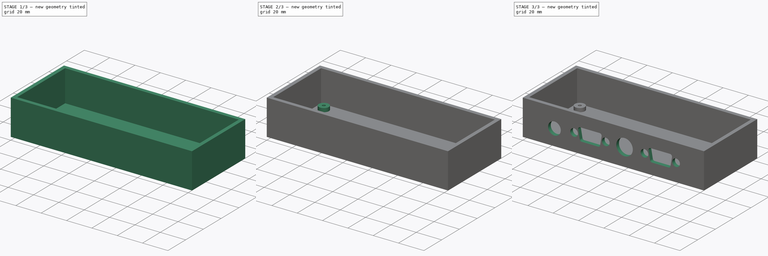
[diagram: build sequence overview — one tinted view per stage of 3, left to right]
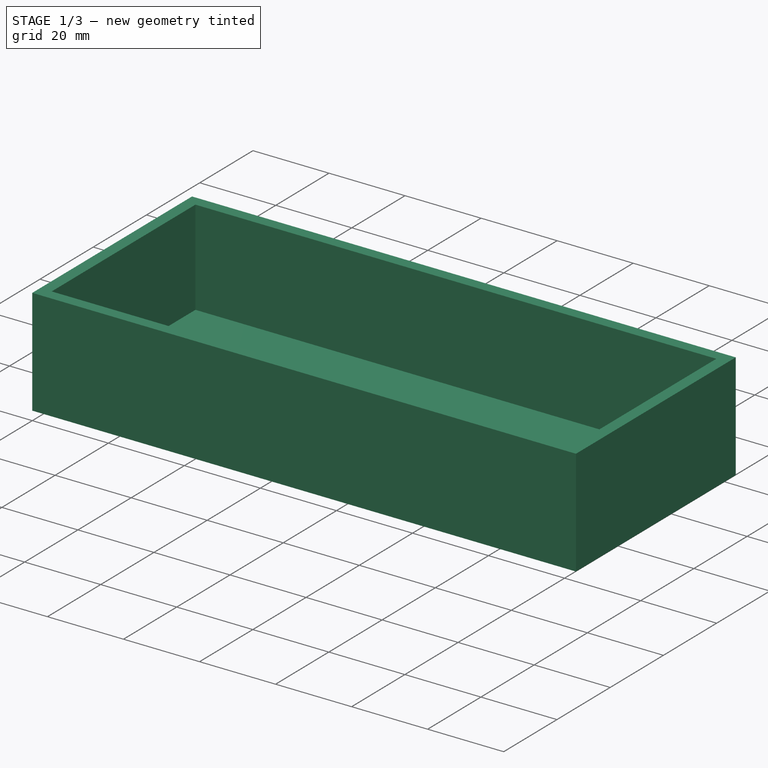
[diagram: stage 1 of 3 — iso view after this stage's code; geometry added in this stage tinted green]
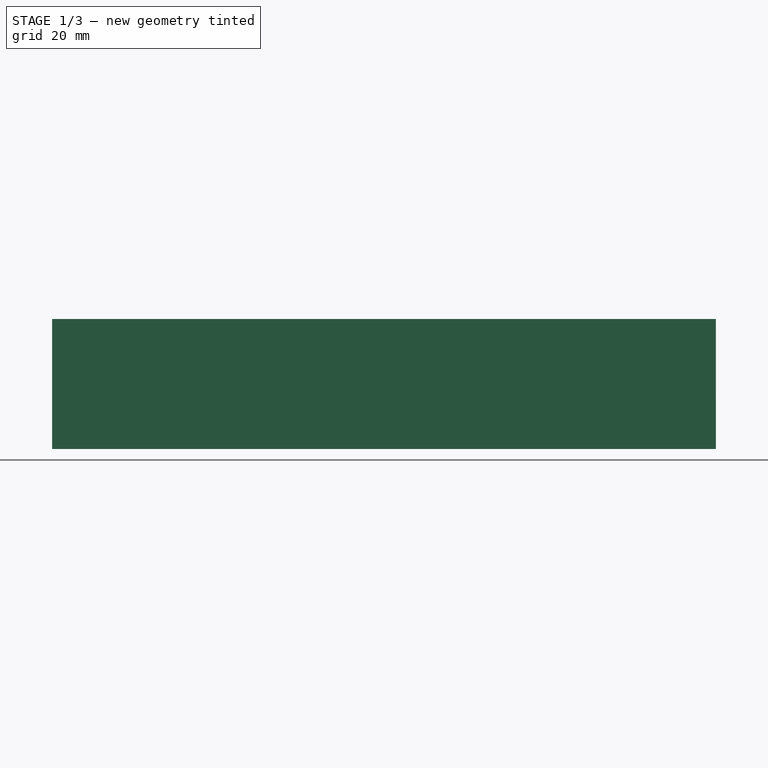
[diagram: stage 1 of 3 — front view after this stage's code; geometry added in this stage tinted green]
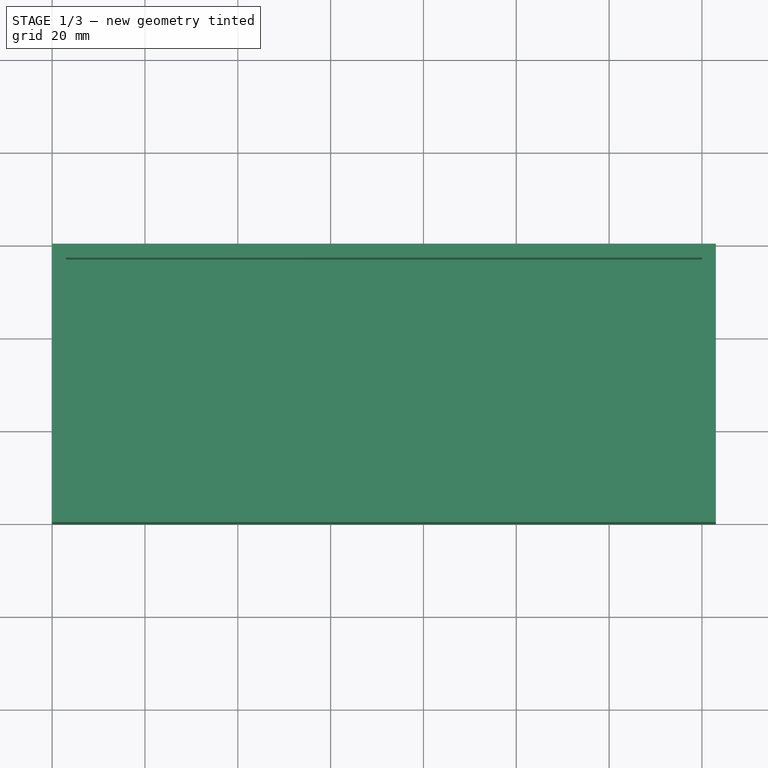
[diagram: stage 1 of 3 — top view after this stage's code; geometry added in this stage tinted green]
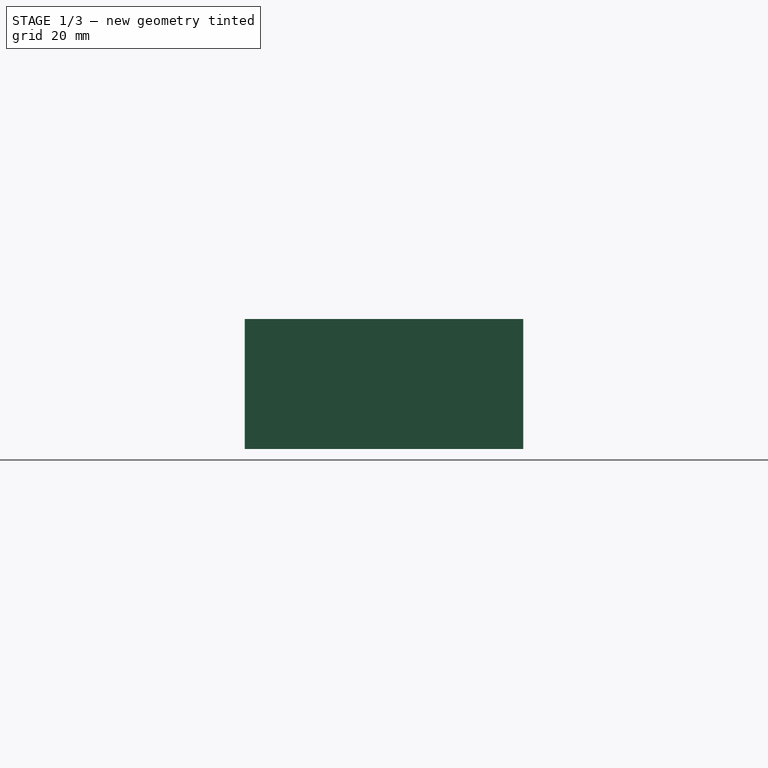
[diagram: stage 1 of 3 — right view after this stage's code; geometry added in this stage tinted green]
FCSTD DOCUMENT  (FreeCAD 0.19RUnknown)
Label: bottom
License: All rights reserved
LicenseURL: http://en.wikipedia.org/wiki/All_rights_reserved
objects: Sketcher::SketchObject×6, PartDesign::Pocket×4, PartDesign::Pad×2, PartDesign::Body×1
note: 19 computed .brp shape members not serialized (recipe doc carries the construction recipe); baked Part::Feature solids carry a one-line shape summary decoded from their .brp

FEATURE [Sketcher::SketchObject] Sketch  label="base"
  MapMode = 5
  Support = -> [XY_Plane]
  sketch-geometry (4):
    g0: LineSegment StartX=0 StartY=0 StartZ=0 EndX=143 EndY=0 EndZ=0
    g1: LineSegment StartX=143 StartY=0 StartZ=0 EndX=143 EndY=60 EndZ=0
    g2: LineSegment StartX=143 StartY=60 StartZ=0 EndX=0 EndY=60 EndZ=0
    g3: LineSegment StartX=0 StartY=60 StartZ=0 EndX=0 EndY=0 EndZ=0
  constraints (11):
    c: Coincident(g0,g1)
    c: Coincident(g1,g2)
    c: Coincident(g2,g3)
    c: Coincident(g3,g0)
    c: Horizontal(g0)
    c: Horizontal(g2)
    c: Vertical(g1)
    c: Vertical(g3)
    c: DistanceX(g0,g0) = 143
    c: DistanceY(g3,g3) = 60
    c: Coincident(g0,g-1)
FEATURE [Sketcher::SketchObject] Sketch001  label="bosses"
  MapMode = 5
  sketch-geometry (4):
    g0: Circle CenterX=10 CenterY=50 CenterZ=0 NormalX=0 NormalY=0 NormalZ=1 AngleXU=0 Radius=4
    g1: Circle CenterX=10 CenterY=10 CenterZ=0 NormalX=0 NormalY=0 NormalZ=1 AngleXU=0 Radius=4
    g2: Circle CenterX=133 CenterY=50 CenterZ=0 NormalX=0 NormalY=0 NormalZ=1 AngleXU=0 Radius=4
    g3: Circle CenterX=133 CenterY=10 CenterZ=0 NormalX=0 NormalY=0 NormalZ=1 AngleXU=0 Radius=4
  constraints (12):
    c: Diameter(g0) = 8
    c: Equal(g0,g1) = 8
    c: Equal(g0,g2) = 8
    c: Equal(g0,g3) = 8
    c: DistanceX(g-1,g1) = 10
    c: DistanceY(g-1,g1) = 10
    c: DistanceX(g1,g3) = 123
    c: Horizontal(g1,g3)
    c: Vertical(g2,g3)
    c: Vertical(g0,g1)
    c: DistanceY(g1,g0) = 40
    c: Horizontal(g0,g2)
FEATURE [PartDesign::Pad] Pad  label="base pad"
  Direction = (1,1,1)
  Length = 28
  Length2 = 100
  Profile = -> Sketch
  Type = 0
FEATURE [Sketcher::SketchObject] Sketch002  label="inner walls"
  AttachmentOffset = pos=(0,0,3) rot=(0,0,1;0rad)
  ExternalGeometry = -> [Sketch]
  MapMode = 5
  Placement = pos=(0,0,3) rot=(0,0,1;0rad)
  Support = -> [XY_Plane]
  sketch-geometry (4):
    g0: LineSegment StartX=3 StartY=3 StartZ=0 EndX=140 EndY=3 EndZ=0
    g1: LineSegment StartX=140 StartY=3 StartZ=0 EndX=140 EndY=57 EndZ=0
    g2: LineSegment StartX=140 StartY=57 StartZ=0 EndX=3 EndY=57 EndZ=0
    g3: LineSegment StartX=3 StartY=57 StartZ=0 EndX=3 EndY=3 EndZ=0
  constraints (12):
    c: Coincident(g0,g1)
    c: Coincident(g1,g2)
    c: Coincident(g2,g3)
    c: Coincident(g3,g0)
    c: Horizontal(g0)
    c: Horizontal(g2)
    c: Vertical(g1)
    c: Vertical(g3)
    c: DistanceX(g-1,g0) = 3
    c: DistanceY(g-1,g0) = 3
    c: DistanceX(g1,g-3) = 3
    c: DistanceY(g1,g-3) = 3
FEATURE [PartDesign::Pocket] Pocket  label="inner walls pocket"
  BaseFeature = -> Pad
  Length = 5
  Length2 = 100
  Profile = -> Sketch002
  Reversed = true
  Type = 1
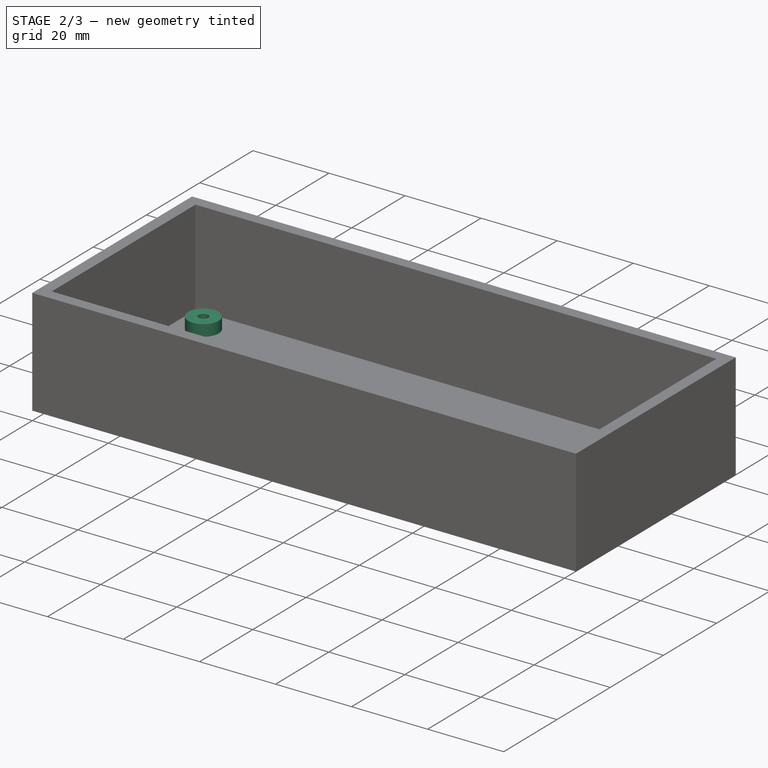
[diagram: stage 2 of 3 — iso view after this stage's code; geometry added in this stage tinted green]
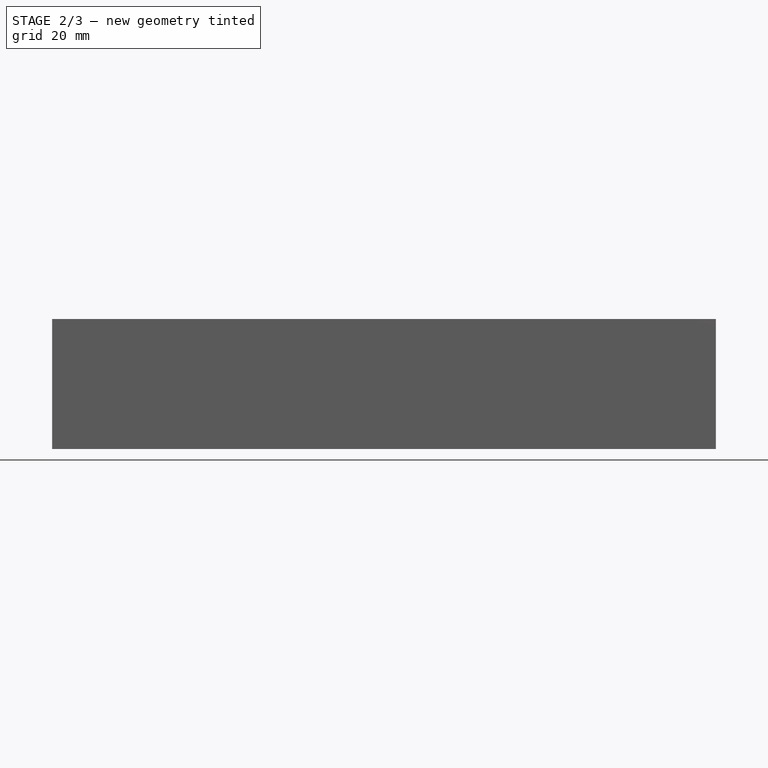
[diagram: stage 2 of 3 — front view after this stage's code; geometry added in this stage tinted green]
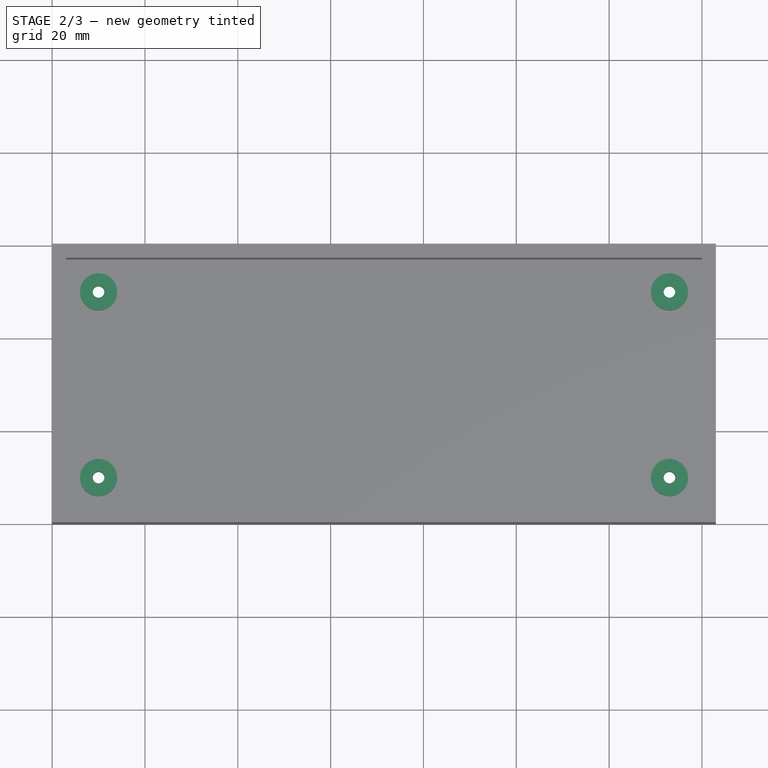
[diagram: stage 2 of 3 — top view after this stage's code; geometry added in this stage tinted green]
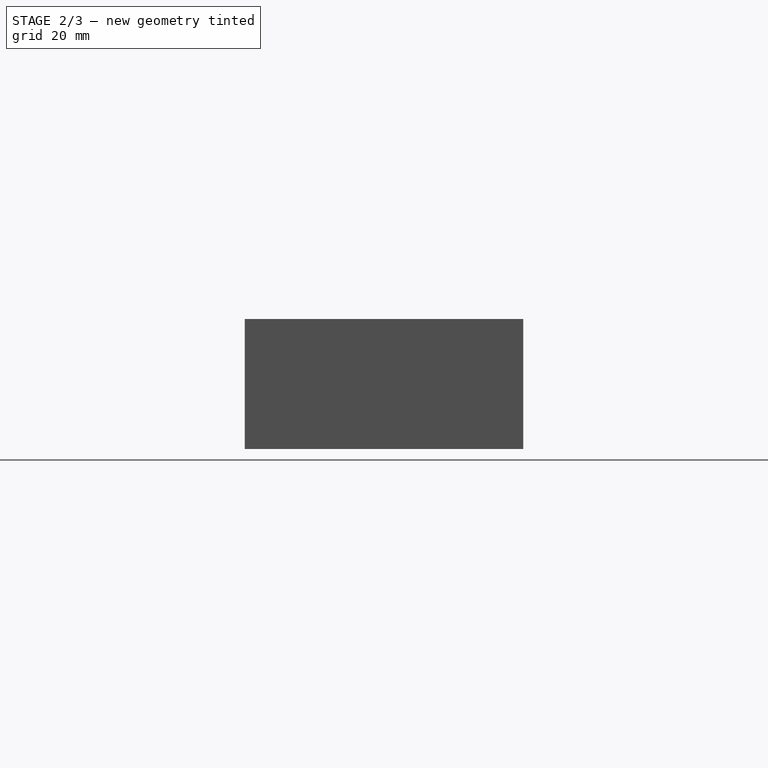
[diagram: stage 2 of 3 — right view after this stage's code; geometry added in this stage tinted green]
FEATURE [PartDesign::Pad] Pad001  label="bosses pad"
  BaseFeature = -> Pocket
  Direction = (1,1,1)
  Length = 6
  Length2 = 100
  Profile = -> Sketch001
  Type = 0
FEATURE [Sketcher::SketchObject] Sketch003  label="mounting holes"
  MapMode = 5
  sketch-geometry (4):
    g0: Circle CenterX=10 CenterY=10 CenterZ=0 NormalX=0 NormalY=0 NormalZ=1 AngleXU=0 Radius=1.25
    g1: Circle CenterX=133 CenterY=10 CenterZ=0 NormalX=0 NormalY=0 NormalZ=1 AngleXU=0 Radius=1.25
    g2: Circle CenterX=133 CenterY=50 CenterZ=0 NormalX=0 NormalY=0 NormalZ=1 AngleXU=0 Radius=1.25
    g3: Circle CenterX=10 CenterY=50 CenterZ=0 NormalX=0 NormalY=0 NormalZ=1 AngleXU=0 Radius=1.25
  constraints (12):
    c: Diameter(g0) = 2.5
    c: Equal(g0,g1) = 2.5
    c: Horizontal(g0,g1)
    c: DistanceX(g0,g1) = 123
    c: DistanceY(g0,g2) = 40
    c: Vertical(g1,g2)
    c: Equal(g2,g0)
    c: Equal(g0,g3) = 2.5
    c: Vertical(g0,g3)
    c: Horizontal(g3,g2)
    c: DistanceX(g-1,g0) = 10
    c: DistanceY(g-1,g0) = 10
FEATURE [PartDesign::Pocket] Pocket001  label="mounting holes pocket"
  BaseFeature = -> Pad001
  Length = 5
  Length2 = 100
  Profile = -> Sketch003
  Reversed = true
  Type = 1
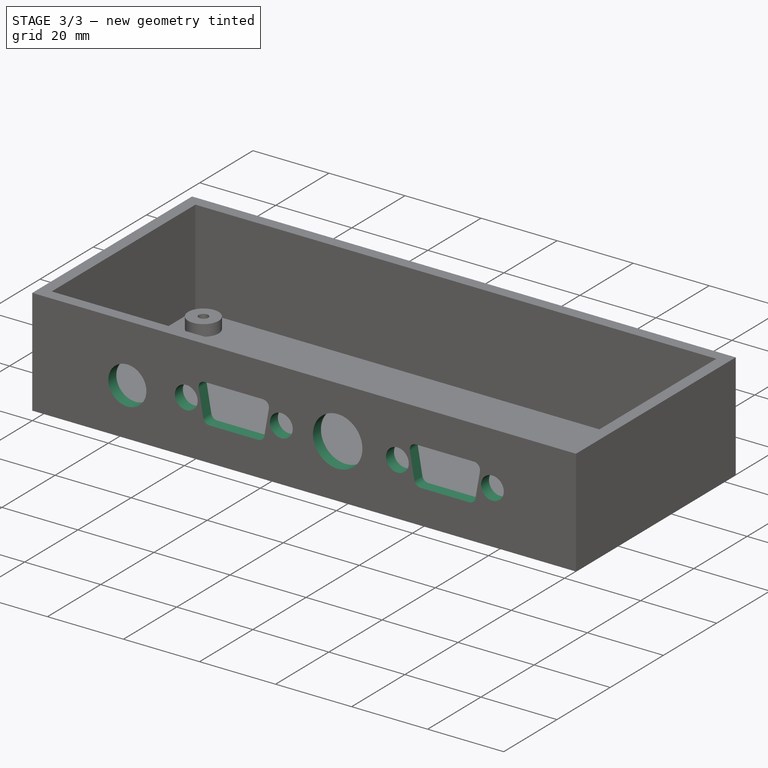
[diagram: stage 3 of 3 — iso view after this stage's code; geometry added in this stage tinted green]
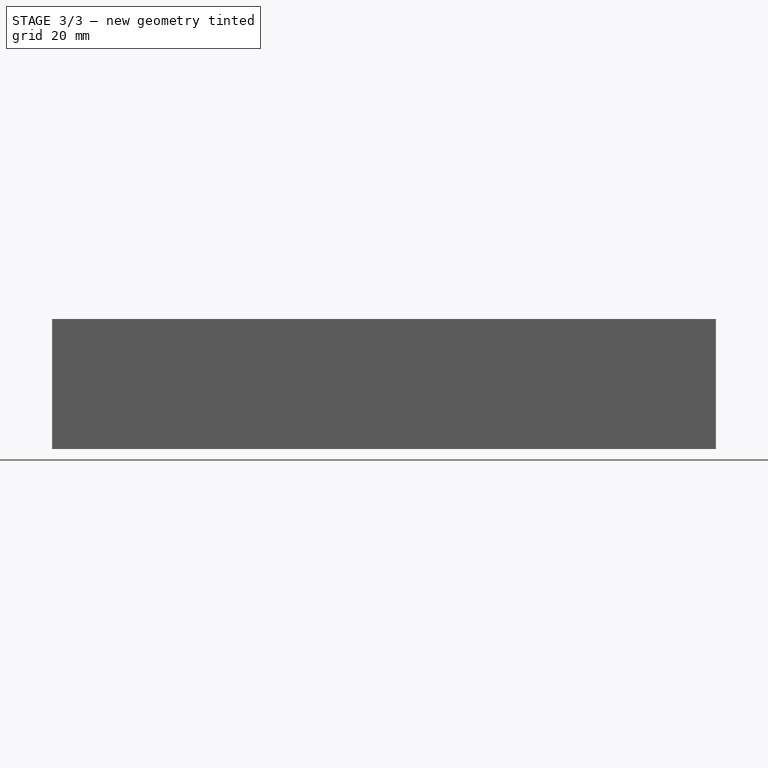
[diagram: stage 3 of 3 — front view after this stage's code; geometry added in this stage tinted green]
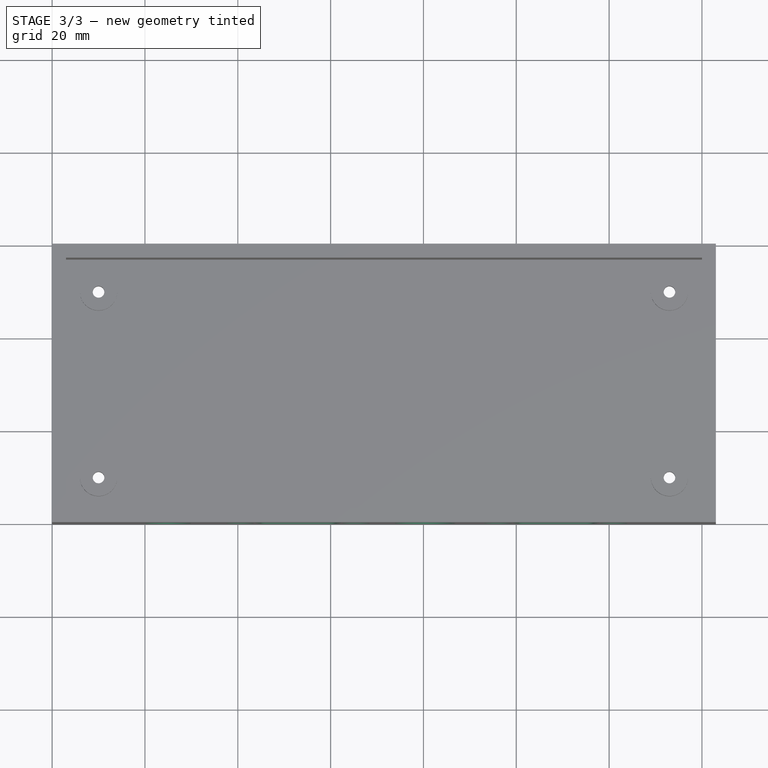
[diagram: stage 3 of 3 — top view after this stage's code; geometry added in this stage tinted green]
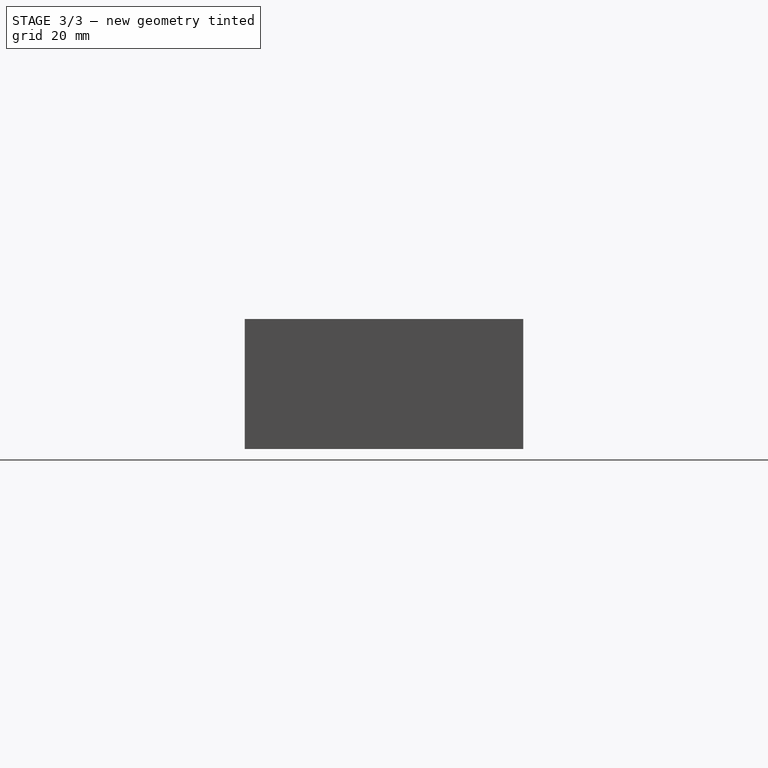
[diagram: stage 3 of 3 — right view after this stage's code; geometry added in this stage tinted green]
FEATURE [Sketcher::SketchObject] Sketch004  label="connector holes"
  ExternalGeometry = -> [Pad001]
  MapMode = 5
  Placement = pos=(0,0,0) rot=(1,0,0;1.5708rad)
  Support = -> [XZ_Plane]
  sketch-geometry (36):
    g0: Circle CenterX=25 CenterY=12.67 CenterZ=0 NormalX=0 NormalY=0 NormalZ=1 AngleXU=0 Radius=3.25
    g1: LineSegment [constr] StartX=0 StartY=7.67 StartZ=0 EndX=150 EndY=7.67 EndZ=0
    g2: LineSegment [constr] StartX=0 StartY=13.9525 StartZ=0 EndX=150 EndY=13.9525 EndZ=0
    g3: Circle CenterX=40.505 CenterY=13.9525 CenterZ=0 NormalX=0 NormalY=0 NormalZ=1 AngleXU=0 Radius=3
    g4: Circle CenterX=65.495 CenterY=13.9525 CenterZ=0 NormalX=0 NormalY=0 NormalZ=1 AngleXU=0 Radius=3
    g5: LineSegment [constr] StartX=40.505 StartY=13.9525 StartZ=0 EndX=65.495 EndY=13.9525 EndZ=0
    g6: GeomPoint X=53 Y=13.9525 Z=0
    g7: LineSegment StartX=46.549 StartY=8.9525 StartZ=0 EndX=59.451 EndY=8.9525 EndZ=0
    g8: LineSegment StartX=60.65 StartY=18.9525 StartZ=0 EndX=45.35 EndY=18.9525 EndZ=0
    g9: LineSegment StartX=43.7743 StartY=17.0747 StartZ=0 EndX=44.9733 EndY=10.2747 EndZ=0
    g10: LineSegment StartX=62.2257 StartY=17.0747 StartZ=0 EndX=61.0267 EndY=10.2747 EndZ=0
    g11: ArcOfCircle CenterX=45.35 CenterY=17.3525 CenterZ=0 NormalX=0 NormalY=0 NormalZ=1 AngleXU=0 Radius=1.6 StartAngle=1.5708 EndAngle=3.31613
    g12: ArcOfCircle CenterX=46.549 CenterY=10.5525 CenterZ=0 NormalX=0 NormalY=0 NormalZ=1 AngleXU=0 Radius=1.6 StartAngle=3.31613 EndAngle=4.71239
    g13: ArcOfCircle CenterX=59.451 CenterY=10.5525 CenterZ=0 NormalX=0 NormalY=0 NormalZ=1 AngleXU=0 Radius=1.6 StartAngle=4.71239 EndAngle=6.10865
    g14: ArcOfCircle CenterX=60.65 CenterY=17.3525 CenterZ=0 NormalX=0 NormalY=0 NormalZ=1 AngleXU=0 Radius=1.6 StartAngle=6.10865 EndAngle=7.85398
    g15: LineSegment [constr] StartX=43.75 StartY=0 StartZ=0 EndX=43.75 EndY=30 EndZ=0
    g16: LineSegment [constr] StartX=62.25 StartY=0 StartZ=0 EndX=62.25 EndY=30 EndZ=0
    g17: LineSegment [constr] StartX=43.75 StartY=0 StartZ=0 EndX=62.25 EndY=0 EndZ=0
    g18: GeomPoint X=53 Y=0 Z=0
    g19: Circle CenterX=80.327 CenterY=14.17 CenterZ=0 NormalX=0 NormalY=0 NormalZ=1 AngleXU=0 Radius=4.75
    g20: Circle CenterX=96.026 CenterY=13.9525 CenterZ=0 NormalX=0 NormalY=0 NormalZ=1 AngleXU=0 Radius=3
    g21: Circle CenterX=121.016 CenterY=13.9525 CenterZ=0 NormalX=0 NormalY=0 NormalZ=1 AngleXU=0 Radius=3
    g22: LineSegment [constr] StartX=96.026 StartY=13.9525 StartZ=0 EndX=121.016 EndY=13.9525 EndZ=0
    g23: GeomPoint X=108.521 Y=13.9525 Z=0
    g24: LineSegment StartX=102.07 StartY=8.9525 StartZ=0 EndX=114.972 EndY=8.9525 EndZ=0
    g25: LineSegment StartX=116.171 StartY=18.9525 StartZ=0 EndX=100.871 EndY=18.9525 EndZ=0
    g26: LineSegment StartX=99.2953 StartY=17.0747 StartZ=0 EndX=100.494 EndY=10.2747 EndZ=0
    g27: LineSegment StartX=117.747 StartY=17.0747 StartZ=0 EndX=116.548 EndY=10.2747 EndZ=0
    g28: ArcOfCircle CenterX=100.871 CenterY=17.3525 CenterZ=0 NormalX=0 NormalY=0 NormalZ=1 AngleXU=0 Radius=1.6 StartAngle=1.5708 EndAngle=3.31613
    g29: ArcOfCircle CenterX=102.07 CenterY=10.5525 CenterZ=0 NormalX=0 NormalY=0 NormalZ=1 AngleXU=0 Radius=1.6 StartAngle=3.31613 EndAngle=4.71239
    g30: ArcOfCircle CenterX=114.972 CenterY=10.5525 CenterZ=0 NormalX=0 NormalY=0 NormalZ=1 AngleXU=0 Radius=1.6 StartAngle=4.71239 EndAngle=6.10865
    g31: ArcOfCircle CenterX=116.171 CenterY=17.3525 CenterZ=0 NormalX=0 NormalY=0 NormalZ=1 AngleXU=0 Radius=1.6 StartAngle=6.10865 EndAngle=7.85398
    g32: LineSegment [constr] StartX=99.271 StartY=0 StartZ=0 EndX=99.271 EndY=30 EndZ=0
    g33: LineSegment [constr] StartX=117.771 StartY=0 StartZ=0 EndX=117.771 EndY=30 EndZ=0
    g34: LineSegment [constr] StartX=99.271 StartY=0 StartZ=0 EndX=117.771 EndY=0 EndZ=0
    g35: GeomPoint X=108.521 Y=0 Z=0
  constraints (94):
    c: DistanceX(g-1,g0) = 25
    c: PointOnObject(g1,g-2)
    c: Horizontal(g1)
    c: DistanceX(g1,g1) = 150
    c: DistanceY(g-3,g1) = 1.67
    c: DistanceY(g1,g0) = 5
    c: Diameter(g0) = 6.5
    c: DistanceY(g1,g2) = 6.2825
    c: Horizontal(g2)
    c: Vertical(g2,g1)
    c: PointOnObject(g2,g-2)
    c: PointOnObject(g3,g2)
    c: Diameter(g3) = 6
    c: Equal(g3,g4) = 6
    c: PointOnObject(g4,g2)
    c: DistanceX(g3,g4) = 24.99
    c: Symmetric(g5,g5,g6)
    c: Coincident(g5,g3)
    c: Coincident(g5,g4)
    c: DistanceX(g-1,g6) = 53
    c: Horizontal(g7)
    c: Horizontal(g8)
    c: Tangent(g7,g12) = -1.5708
    c: Tangent(g9,g12) = -1.5708
    c: Tangent(g9,g11) = -1.5708
    c: Tangent(g8,g11) = -1.5708
    c: Tangent(g14,g8) = -1.5708
    c: Tangent(g14,g10) = 1.5708
    c: Tangent(g7,g13) = -1.5708
    c: Tangent(g13,g10) = 1.5708
    c: DistanceY(g6,g8) = 5
    c: DistanceY(g7,g6) = 5
    c: Radius(g11) = 1.6
    c: Equal(g11,g14)
    c: Equal(g12,g13)
    c: Equal(g13,g11)
    c: Angle(g9) = -1.39626
    c: Angle(g10) = -1.74533
    c: PointOnObject(g15,g-1)
    c: PointOnObject(g16,g-1)
    c: Vertical(g15)
    c: Vertical(g16)
    c: DistanceY(g16,g16) = 30
    c: DistanceY(g15,g15) = 30
    c: Tangent(g15,g11)
    c: Tangent(g16,g14)
    c: DistanceX(g15,g16) = 18.5
    c: Coincident(g15,g17)
    c: Symmetric(g15,g17,g18)
    c: Coincident(g17,g16)
    c: Vertical(g18,g6)
    c: DistanceY(g1,g19) = 6.5
    c: Diameter(g19) = 9.5
    c: DistanceX(g-1,g19) = 80.327
    c: Equal(g3,g20) = 6
    c: Equal(g20,g21) = 6
    c: DistanceX(g20,g21) = 24.99
    c: Symmetric(g22,g22,g23)
    c: Coincident(g22,g20)
    c: Coincident(g22,g21)
    c: Horizontal(g24)
    c: Horizontal(g25)
    c: Tangent(g24,g29) = -1.5708
    c: Tangent(g26,g29) = -1.5708
    c: Tangent(g26,g28) = -1.5708
    c: Tangent(g25,g28) = -1.5708
    c: Tangent(g31,g25) = -1.5708
    c: Tangent(g31,g27) = 1.5708
    c: Tangent(g24,g30) = -1.5708
    c: Tangent(g30,g27) = 1.5708
    c: DistanceY(g23,g25) = 5
    c: DistanceY(g24,g23) = 5
    c: Equal(g11,g28) = 1.6
    c: Equal(g28,g31)
    c: Equal(g29,g30)
    c: Equal(g30,g28)
    c: Parallel(g9,g26) = -1.39626
    c: Parallel(g10,g27) = -1.74533
    c: PointOnObject(g23,g2)
    c: PointOnObject(g20,g2)
    c: DistanceX(g-1,g23) = 108.521
    c: Coincident(g32,g34)
    c: Coincident(g33,g34)
    c: PointOnObject(g32,g-1)
    c: PointOnObject(g33,g-1)
    c: Symmetric(g32,g33,g35)
    c: Vertical(g35,g23)
    c: Vertical(g32)
    c: Vertical(g33)
    c: DistanceY(g32,g32) = 30
    c: DistanceY(g33,g33) = 30
    c: Tangent(g32,g28)
    c: Tangent(g31,g33)
    c: DistanceX(g34,g34) = 18.5
FEATURE [PartDesign::Pocket] Pocket002  label="connector holes pocket"
  BaseFeature = -> Pocket001
  Length = 5
  Length2 = 100
  Profile = -> Sketch004
  Type = 0
FEATURE [Sketcher::SketchObject] Sketch005  label="relief"
  ExternalGeometry = -> [Sketch004]
  MapMode = 5
  Placement = pos=(0,0,0) rot=(1,0,0;1.5708rad)
  Support = -> [XZ_Plane]
  sketch-geometry (4):
    g0: Circle CenterX=25 CenterY=12.67 CenterZ=0 NormalX=0 NormalY=0 NormalZ=1 AngleXU=0 Radius=5
    g1: GeomPoint X=53 Y=13.9525 Z=0
    g2: GeomPoint X=108.521 Y=13.9525 Z=0
    g3: Circle CenterX=80.327 CenterY=14.17 CenterZ=0 NormalX=0 NormalY=0 NormalZ=1 AngleXU=0 Radius=6.5
  constraints (6):
    c: Diameter(g0) = 10
    c: Coincident(g0,g-3)
    c: Symmetric(g-4,g-5,g1)
    c: Symmetric(g-7,g-8,g2)
    c: Diameter(g3) = 13
    c: Coincident(g3,g-6)
FEATURE [PartDesign::Pocket] Pocket003  label="relief pocket"
  BaseFeature = -> Pocket002
  Length = 5
  Length2 = 100
  Profile = -> Sketch005
  Type = 0
FEATURE [PartDesign::Body] Body
  Group = -> [Sketch,Sketch001,Pad,Sketch002,Pocket,Pad001,Sketch003,Pocket001,Sketch004,Pocket002,Sketch005,Pocket003]
  Origin = -> Origin
  Tip = -> Pocket003
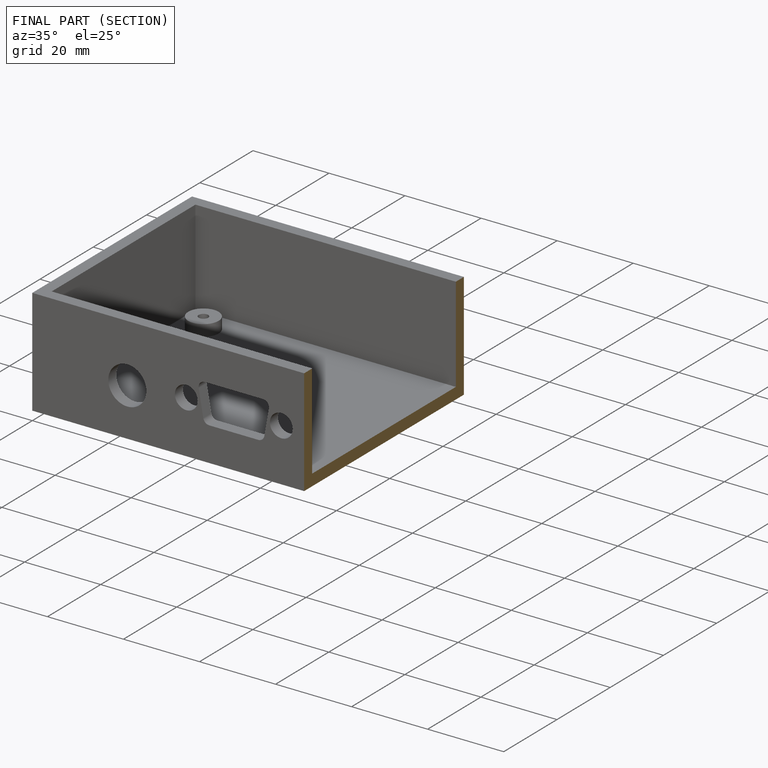
[diagram: finished part — half-section view (interior)]
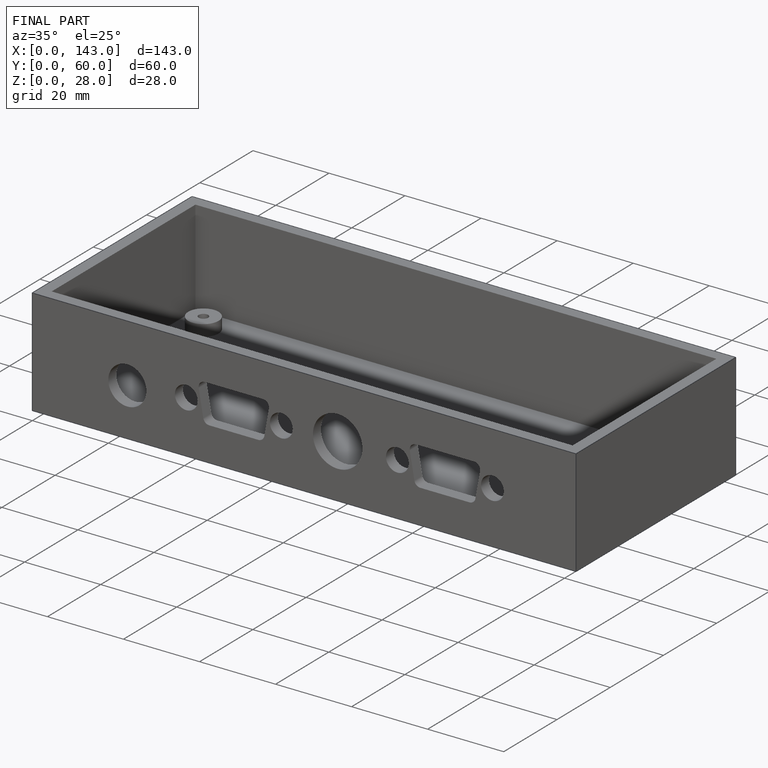
[diagram: finished part — iso view with bounding-box wireframe]
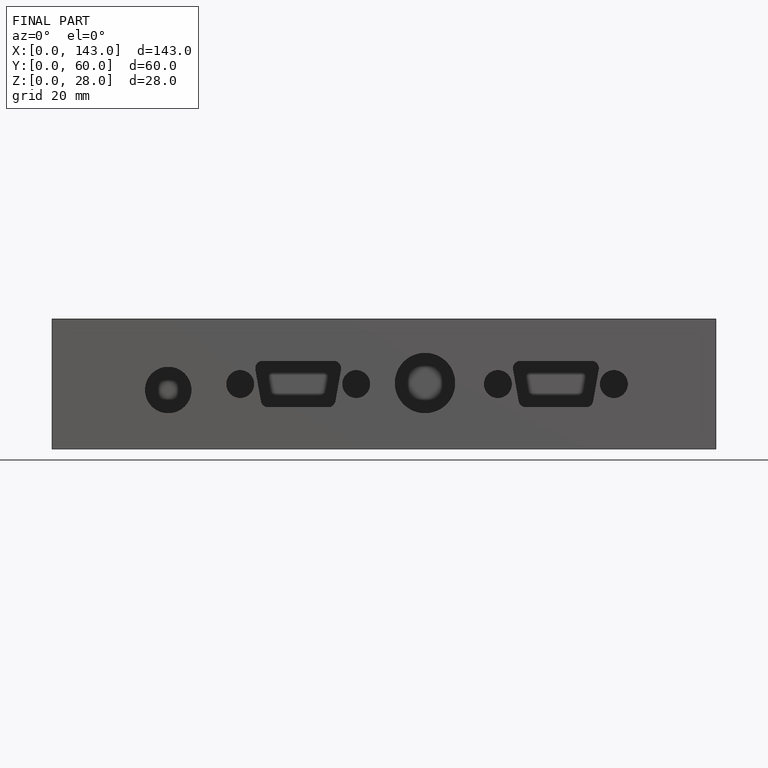
[diagram: finished part — front view with bounding-box wireframe]
